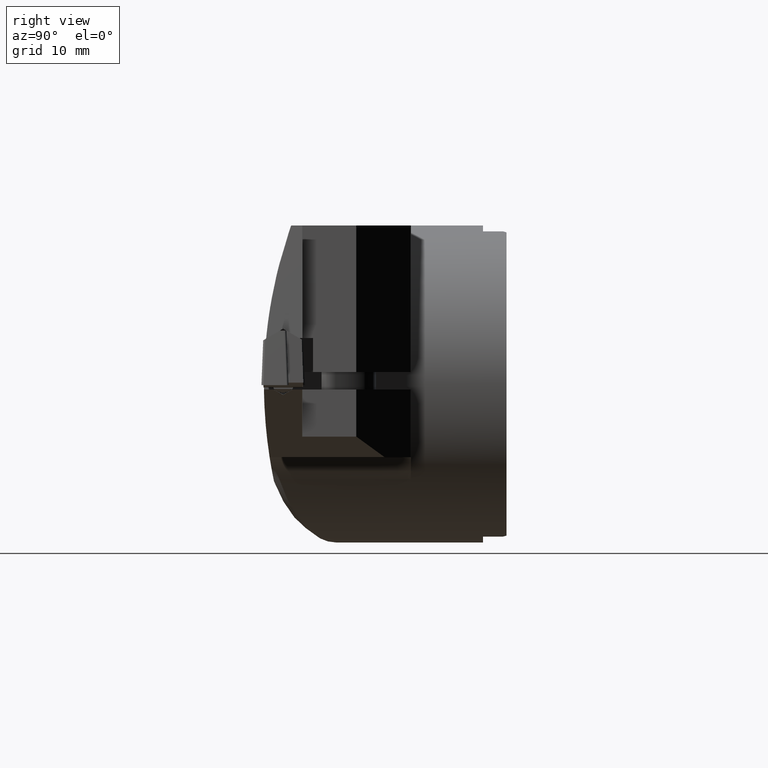
[diagram: clean part render]
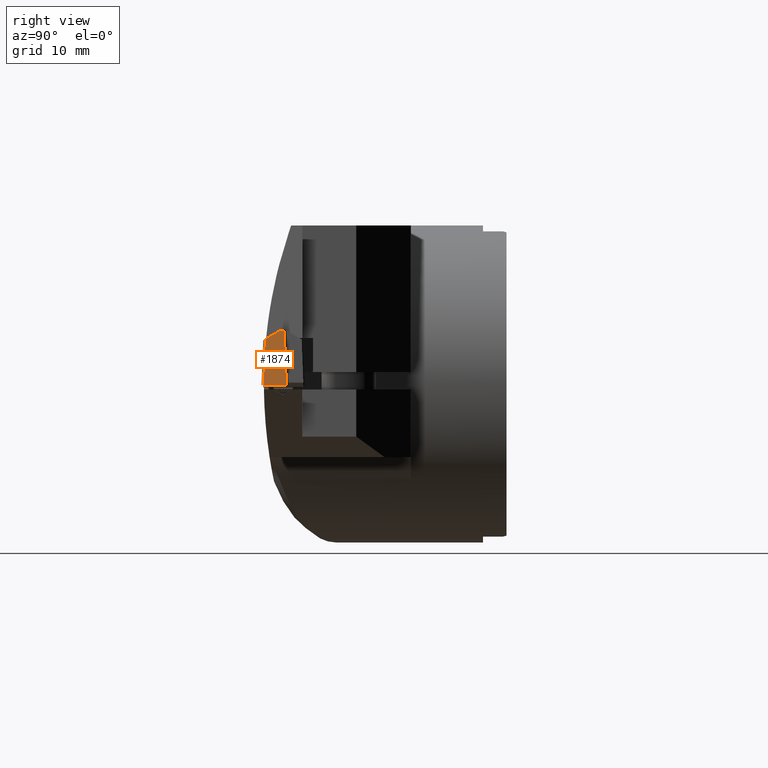
[diagram: same view with one face highlighted and labeled with its STEP entity id]
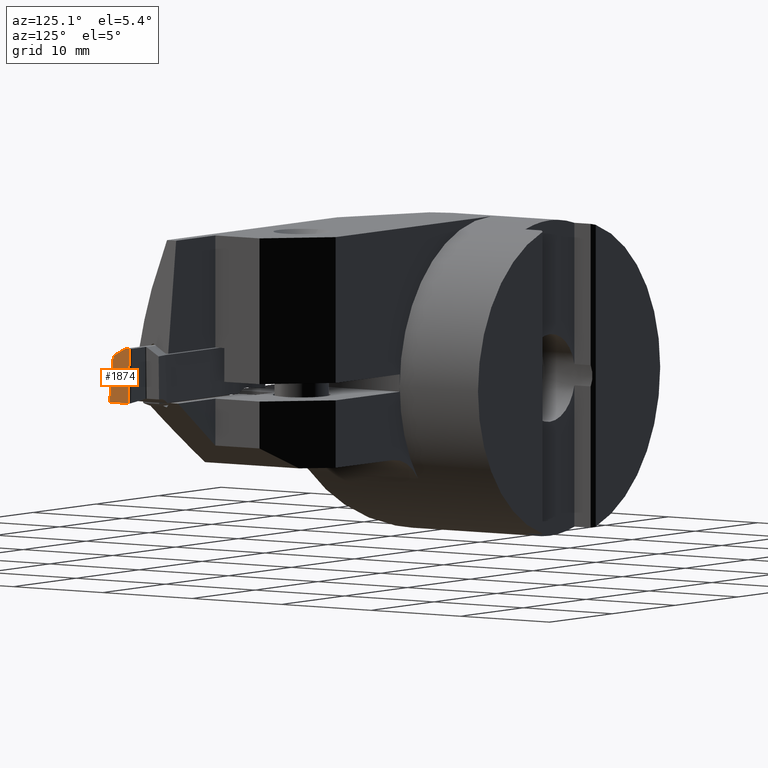
[diagram: same view with one face highlighted and labeled with its STEP entity id]
A machine part, right view. The second image highlights one B-rep face of the part: STEP entity #1874.
A second angle (auxiliary view) of the same face is appended — the face is thin or edge-on in the first view.
In plain terms, the highlighted planar face has unit normal (-0.9962, 0, -0.0872).
Its self-contained STEP definition (entity closure, byte-faithful):
#1022=VERTEX_POINT('NONE',#2519);
#1208=EDGE_CURVE('NONE',#1892,#2198,#2723,.T.);
#1274=EDGE_CURVE('NONE',#1366,#1892,#2794,.T.);
#1366=VERTEX_POINT('NONE',#2894);
#1836=EDGE_CURVE('NONE',#2184,#1022,#3408,.T.);
#1846=EDGE_CURVE('NONE',#1022,#2198,#3421,.T.);
#1874=ADVANCED_FACE('NONE',(#3451),#3452,.F.);
#1892=VERTEX_POINT('NONE',#3472);
#2030=EDGE_CURVE('NONE',#2184,#1366,#3625,.T.);
#2184=VERTEX_POINT('NONE',#3795);
#2198=VERTEX_POINT('NONE',#3809);
#2519=CARTESIAN_POINT('',(41.0633886231173,-20.7708726109815,4.86344900738284));
#2723=LINE('',#4763,#4764);
#2794=LINE('',#4898,#4899);
#2894=CARTESIAN_POINT('',(41.4981536584421,-22.2306678446115,-0.105938085791305));
#3408=LINE('',#6050,#6051);
#3421=LINE('',#6066,#6067);
#3451=FACE_OUTER_BOUND('',#6111,.T.);
#3452=PLANE('',#6112);
#3472=CARTESIAN_POINT('',(41.4981536584421,-20.151708237492,-0.105938085791288));
#3625=LINE('',#6544,#6545);
#3795=CARTESIAN_POINT('',(41.1287348775301,-22.0645605948387,4.11653790165551));
#3809=CARTESIAN_POINT('',(41.0633886231173,-20.3405311654306,4.86344900738285));
#4763=CARTESIAN_POINT('',(41.0640692116552,-20.3402355788263,4.855669844798));
#4764=VECTOR('',#7482,1000.0);
#4898=CARTESIAN_POINT('',(41.4981536584421,-18.4477568135665,-0.105938085791275));
#4899=VECTOR('',#7540,1000.0);
#6050=CARTESIAN_POINT('',(41.1470735679492,-22.4276195589384,3.90692571100084));
#6051=VECTOR('',#8192,1000.0);
#6066=CARTESIAN_POINT('',(41.0633886231173,-20.1246410161514,4.86344900738285));
#6067=VECTOR('',#8214,1000.0);
#6111=EDGE_LOOP('',(#8247,#8248,#8249,#8250,#8251));
#6112=AXIS2_PLACEMENT_3D('',#8252,#8253,#8254);
#6544=CARTESIAN_POINT('',(41.0286751816093,-22.0195692685681,5.26022545942895));
#6545=VECTOR('',#8445,1000.0);
#7482=DIRECTION('',(-0.0870933704316077,-0.0378255468419925,0.995481779257143));
#7540=DIRECTION('',(1.11022302462527E-016,1.0,7.84042062722297E-015));
#8192=DIRECTION('',(-0.0437025378896643,0.86519799244826,0.499522293842329));
#8214=DIRECTION('',(1.11022302462527E-016,1.0,7.84042062722297E-015));
#8247=ORIENTED_EDGE('',*,*,#1274,.T.);
#8248=ORIENTED_EDGE('',*,*,#1208,.T.);
#8249=ORIENTED_EDGE('',*,*,#1846,.F.);
#8250=ORIENTED_EDGE('',*,*,#1836,.F.);
#8251=ORIENTED_EDGE('',*,*,#2030,.T.);
#8252=CARTESIAN_POINT('',(41.0169660090495,-25.4477568135665,5.39406191420867));
#8253=DIRECTION('',(-0.996194698091746,7.93937512302718E-016,-0.0871557427476496));
#8254=DIRECTION('',(-0.0871557427476496,-7.80090922841601E-015,0.996194698091746));
#8445=DIRECTION('',(0.0870888933687226,-0.0391590717925008,-0.995430606194204));